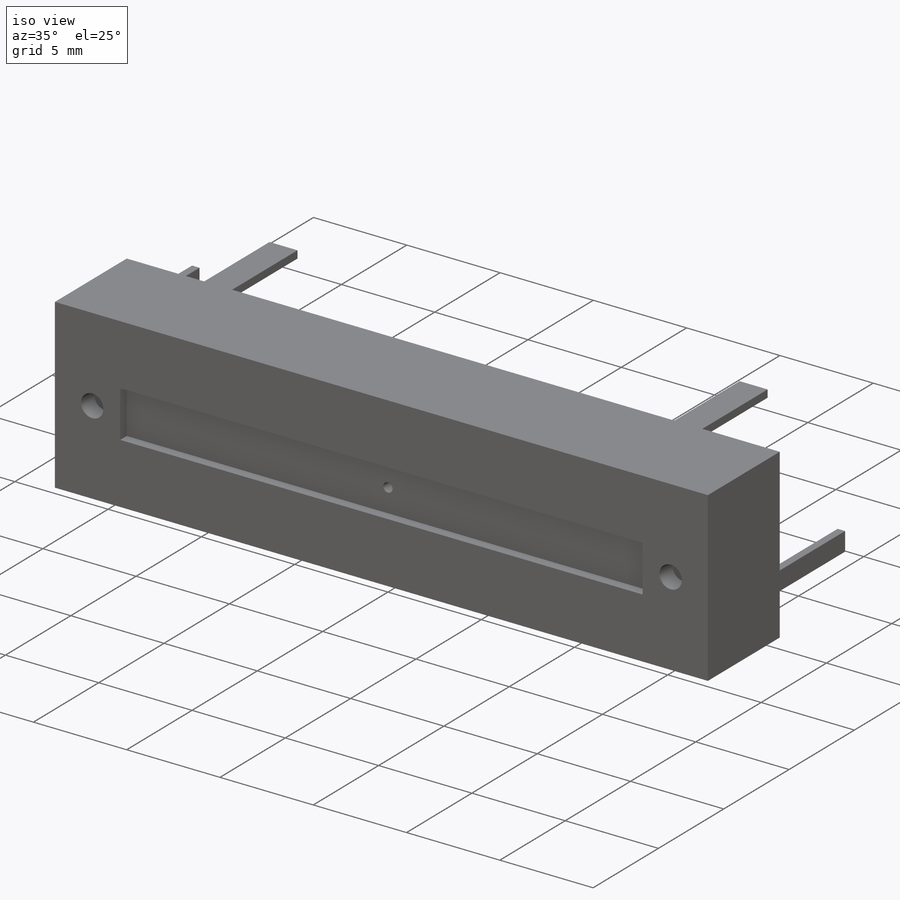
[diagram: iso view]
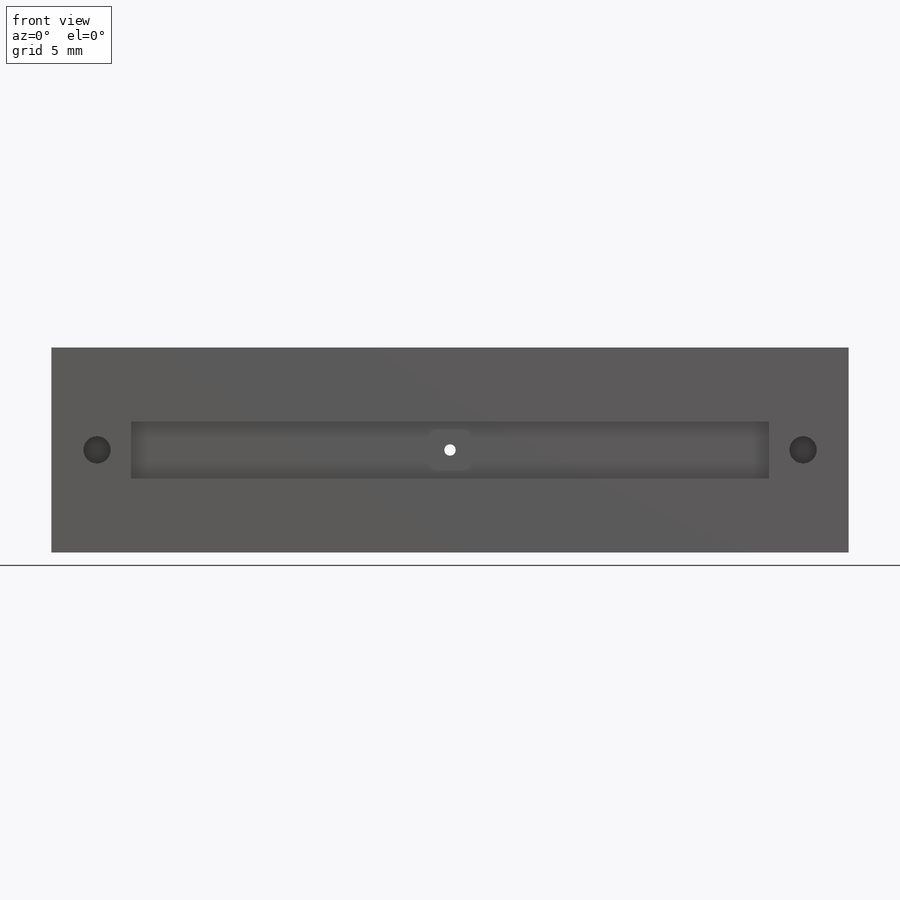
[diagram: front view]
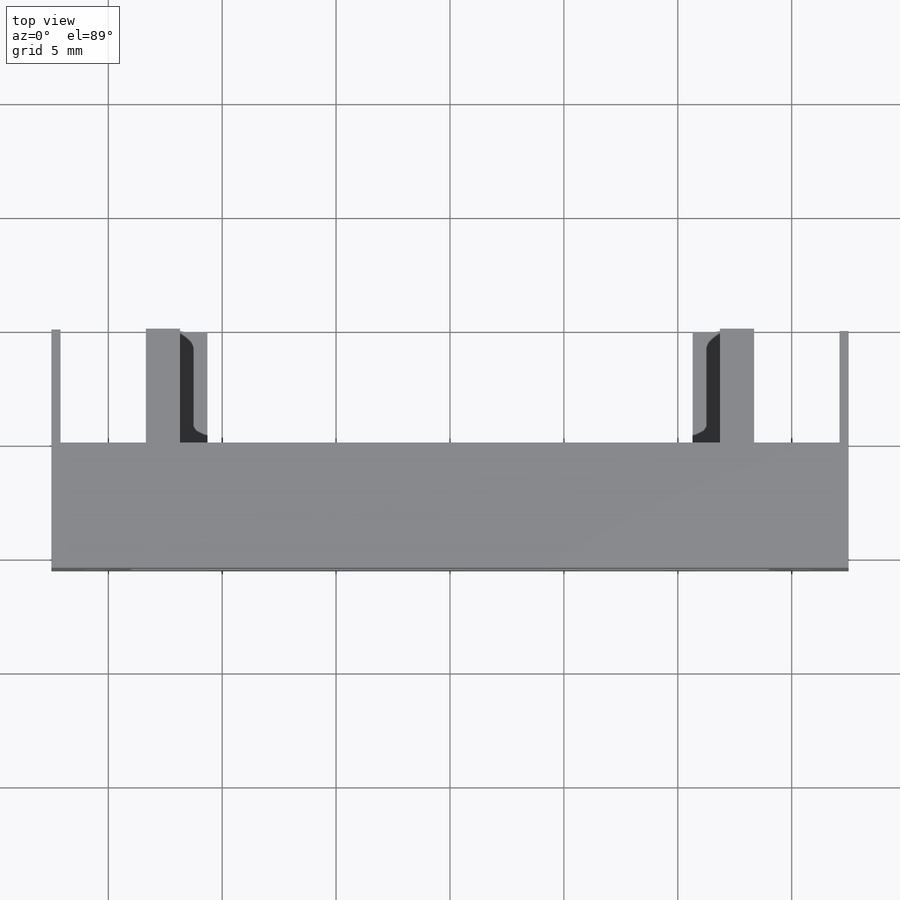
[diagram: top view]
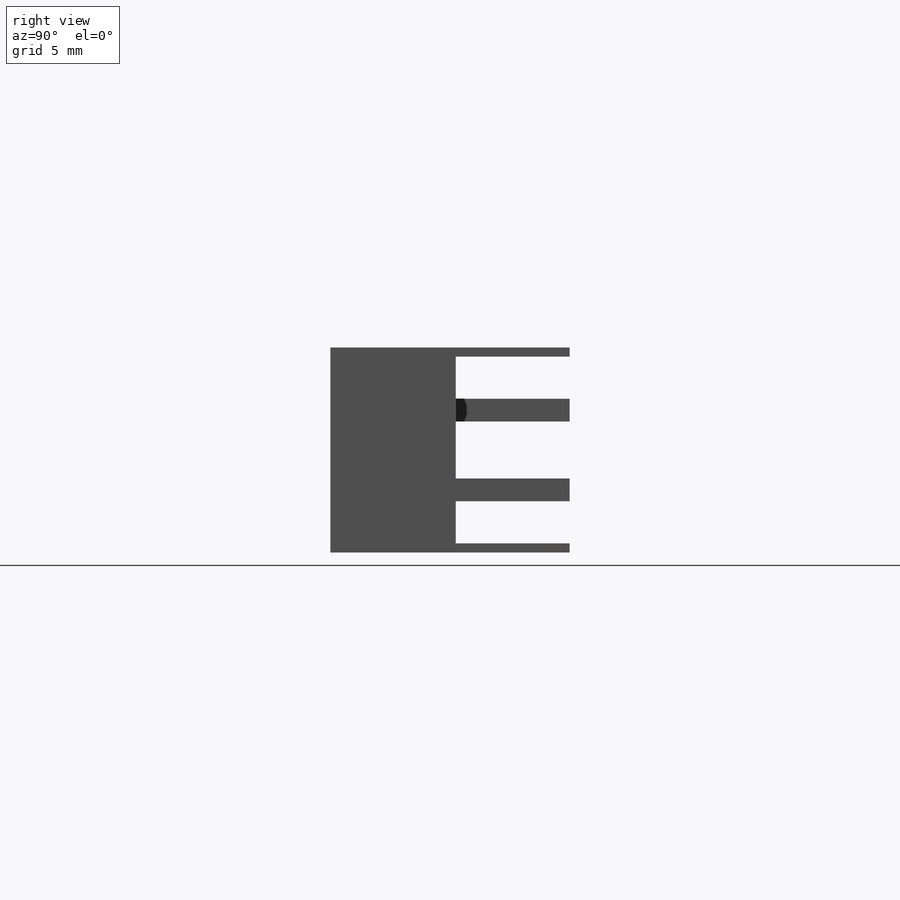
[diagram: right view]
SOLIDWORKS PART (.sldprt)
format: sldprt  version: not decoded by parser v0  size: 292,352 bytes
history: native  units: mm
features: sketch x5, plane x3, cut_extrude x3, extrude x2, material x1 (+10 scaffold rows collapsed)
feature tree (24):
  scaffold x10  (default folders/planes/origin — collapsed)
  material  "Melaminharz"
  plane  "Ebene vorne"
  plane  "Ebene oben"
  plane  "Ebene rechts"
  sketch  "body"  dims[c1.D1=~18.367376mm c1.D2=~94.856175mm c2.D1=35.0mm c2.D2=9.0mm]
  extrude  "-body"  Depth=5.5mm
  sketch  "holes"  dims[c1.D1=~63.432522mm c1.D2=31.0mm c1.D3=31.0mm c2.D2=~33.761026mm c2.D3=2.0mm c3.D2=31.0mm c3.D4=2.0mm]
  cut_extrude  "-holes"  Depth=1mm
  sketch  "channel"  dims[c1.D1=~2.626544mm c1.D2=~28.471735mm c2.D1=28.0mm c2.D2=2.5mm]
  cut_extrude  "-channel"  Depth=0.5mm
  sketch  "connection pins"  dims[c1.D1=~0.975412mm c1.D2=~2.927527mm c2.D1=~0.975412mm c2.D2=~3.197167mm c3.D1=~0.693362mm c3.D2=~1.579324mm c4.D1=~1.129492mm c4.D2=~3.813489mm c5.D1=~1.656364mm c5.D2=~0.647461mm c6.D1=~1.129492mm c6.D2=~3.120127mm c7.D1=~1.463763mm c7.D2=~0.570421mm c8.D1=~2.465286mm c8.D2=~1.071182mm c9.D1=0.4mm c9.D2=0.4mm c9.D3=0.4mm c9.D4=0.4mm c9.D5=0.4mm c9.D6=0.4mm c9.D7=1.5mm c9.D8=1.5mm c9.D9=1.5mm c9.D10=1.5mm c9.D11=25.2mm c9.D12=22.8mm c9.D13=1.0mm c9.D14=1.0mm c9.D15=5.35mm c9.D16=4.15mm c9.D17=6.25mm c9.D18=2.25mm c9.D19=2.25mm c10.D17=3.5mm c10.D20=~1.422052mm c10.D21=0.4mm c11.D20=1.0mm c11.D21=0.4mm c12.D20=1.0mm c12.D21=0.4mm c13.D20=1.0mm]
  extrude  "-connection pins"  Depth=5mm
  sketch  "Skizze1"  dims[D1=~11.625336mm D2=4.5mm]
  cut_extrude  "Schnitt-Linear austragen1"  [1 undecoded]
decode coverage: 9 of 10 modeling features carry decoded parameters
note: ~ marks probable driven/reference dimensions
note: 1 parameter value undecoded
note: suppression state not decoded; provenance and decode notes live in map.json
